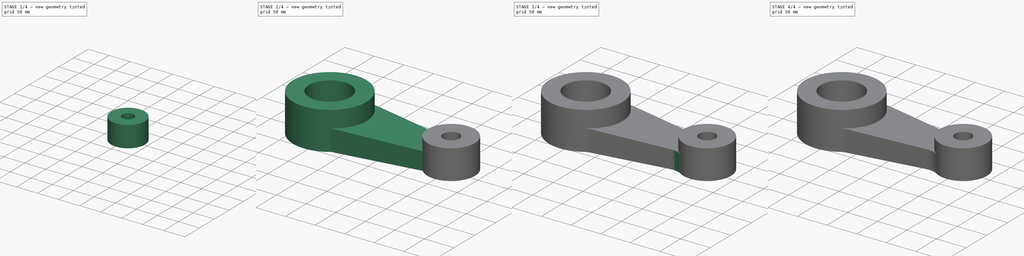
[diagram: build sequence overview — one tinted view per stage of 4, left to right]
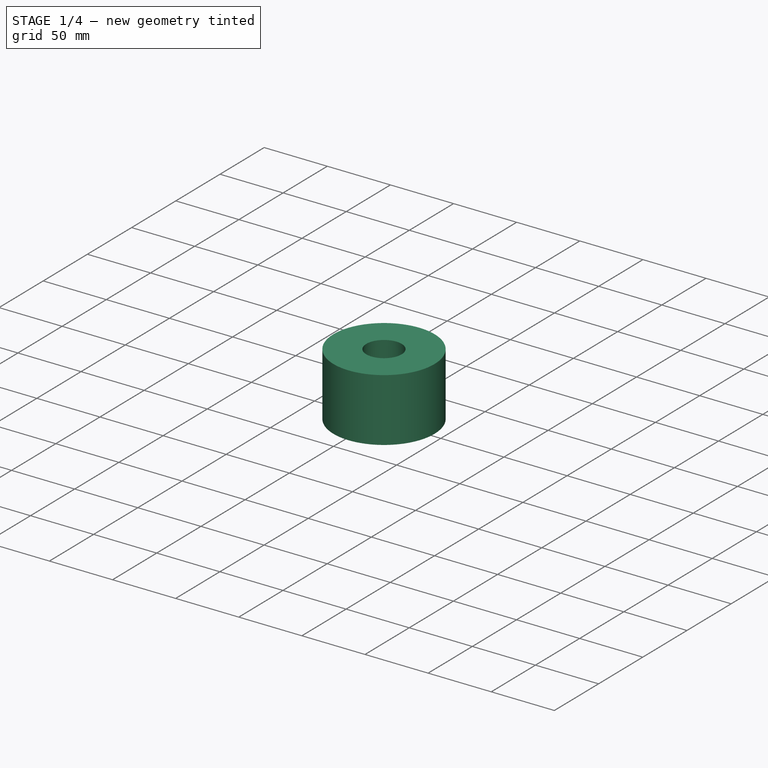
[diagram: stage 1 of 4 — iso view after this stage's code; geometry added in this stage tinted green]
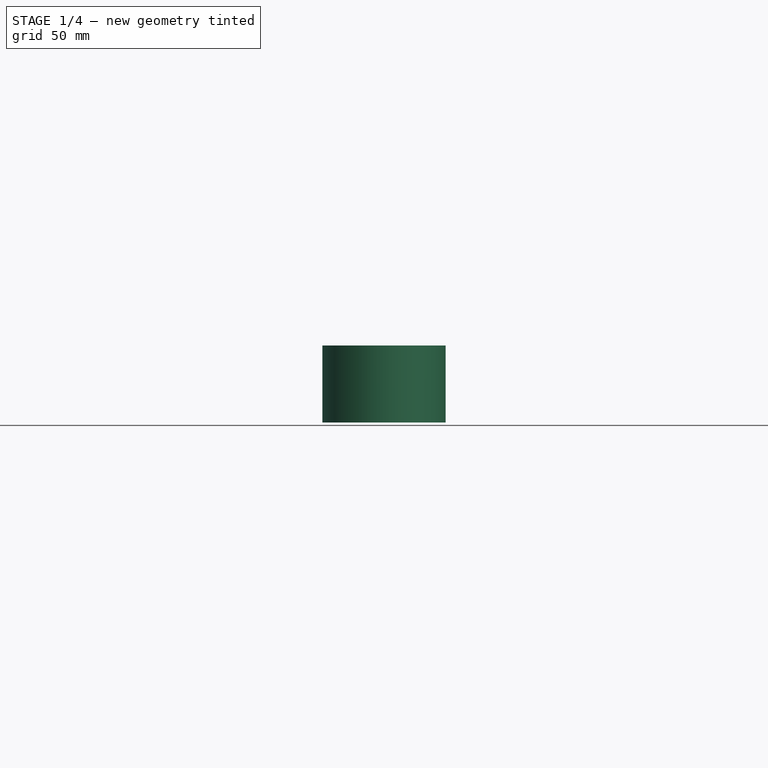
[diagram: stage 1 of 4 — front view after this stage's code; geometry added in this stage tinted green]
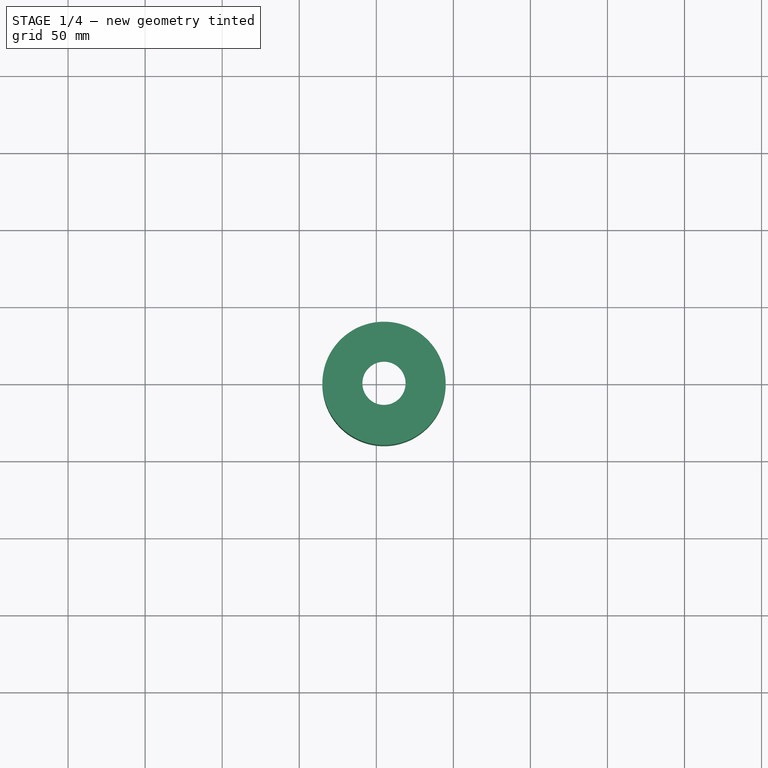
[diagram: stage 1 of 4 — top view after this stage's code; geometry added in this stage tinted green]
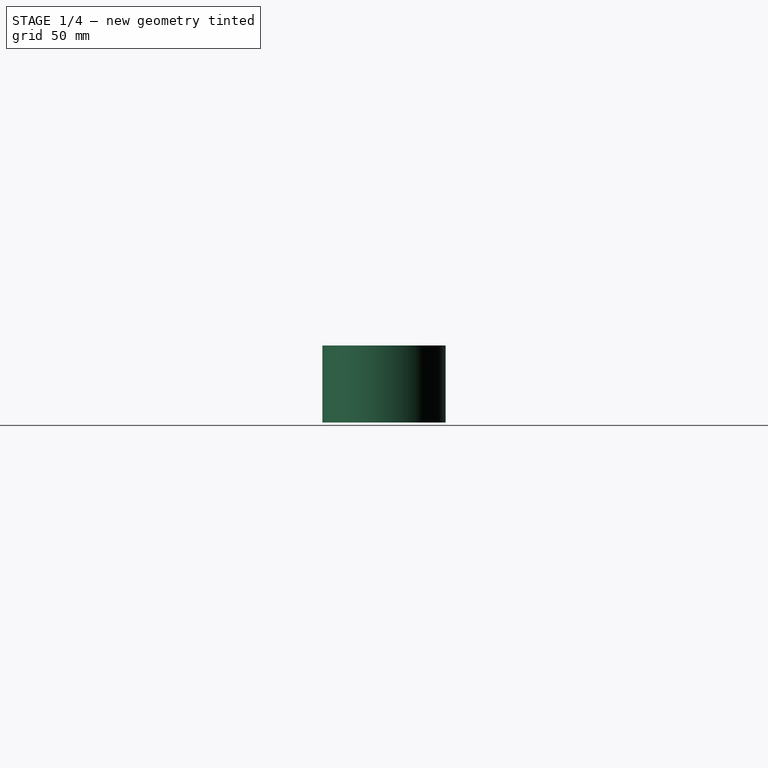
[diagram: stage 1 of 4 — right view after this stage's code; geometry added in this stage tinted green]
FCSTD DOCUMENT  (FreeCAD 0.16R)
Label: Manivela Final
License: All rights reserved
LicenseURL: http://en.wikipedia.org/wiki/All_rights_reserved
objects: Sketcher::SketchObject×6, Part::Feature×4, PartDesign::Fillet×4, PartDesign::Pad×3, PartDesign::Pocket×1, Part::Loft×1, Part::Cut×1, Part::MultiFuse×1
note: 25 computed .brp shape members not serialized (recipe doc carries the construction recipe); baked Part::Feature solids carry a one-line shape summary decoded from their .brp

FEATURE [Sketcher::SketchObject] Sketch001
  sketch-geometry (1):
    g0: Circle CenterX=205 CenterY=0 CenterZ=0 NormalX=0 NormalY=0 NormalZ=1 Radius=40
  constraints (3):
    c: PointOnObject(g0,g-1)
    c: Radius(g0) = 40
    c: DistanceX(g-1,g0) = 205
FEATURE [PartDesign::Pad] Pad001  label="Aro Pequeño"
  Length = 50
  Length2 = 100
  Sketch = -> Sketch001
  Type = 0
FEATURE [Sketcher::SketchObject] Sketch006
  ExternalGeometry = -> [Pad001]
  Placement = pos=(0,0,50) rot=(0,0,1;0rad)
  Support = -> Pad001 [Face3]
  sketch-geometry (1):
    g0: Circle CenterX=205 CenterY=0 CenterZ=0 NormalX=0 NormalY=0 NormalZ=1 Radius=14
  constraints (2):
    c: Coincident(g0,g-3)
    c: Radius(g0) = 14
FEATURE [Sketcher::SketchObject] Sketch007
  ExternalGeometry = -> [Pad001]
  Placement = pos=(0,0,0) rot=(1,0,0;3.14159rad)
  Support = -> Pad001 [Face2]
  sketch-geometry (1):
    g0: Circle CenterX=205 CenterY=0 CenterZ=0 NormalX=0 NormalY=0 NormalZ=1 Radius=17.5
  constraints (2):
    c: Coincident(g0,g-3)
    c: Radius(g0) = 17.5
FEATURE [Part::Loft] Loft
  Closed = false
  Ruled = false
  Sections = -> [Sketch006,Sketch007]
  Solid = false
FEATURE [Part::Feature] Face
  shape: bbox 44.1 x 38.06 x 2e-07 mm, 1 faces, 0 solids (baked)
FEATURE [Part::Feature] Face001
  shape: bbox 52.95 x 43.75 x 2e-07 mm, 1 faces, 0 solids (baked)
FEATURE [Part::Feature] Shell
  shape: bbox 52.95 x 43.75 x 50 mm, 3 faces, 0 solids (baked)
FEATURE [Part::Feature] Solid
  shape: bbox 35 x 35 x 50 mm, 1 faces (baked)
FEATURE [Part::Cut] Cut
  Base = -> Pad001
  Tool = -> Solid
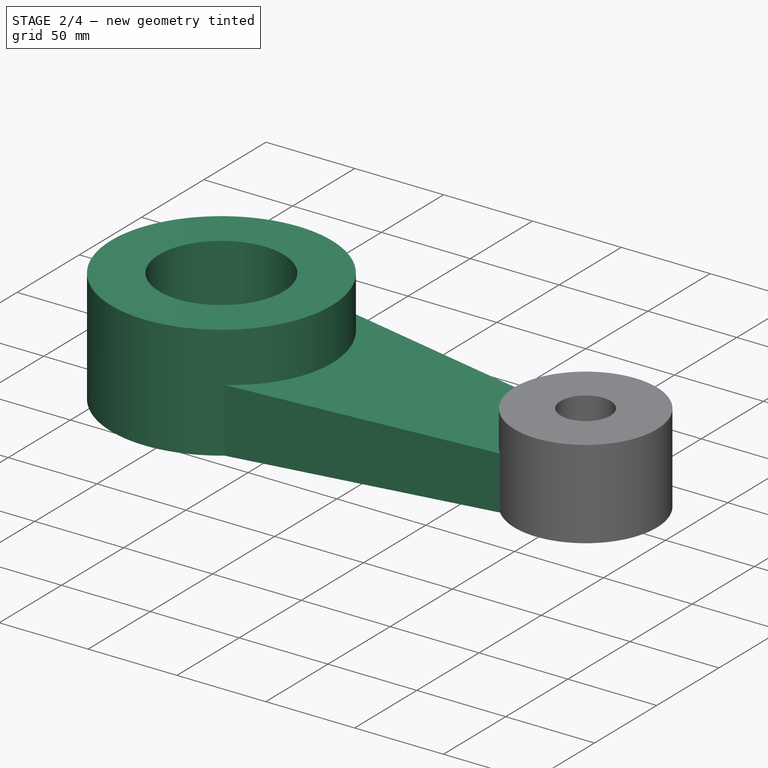
[diagram: stage 2 of 4 — iso view after this stage's code; geometry added in this stage tinted green]
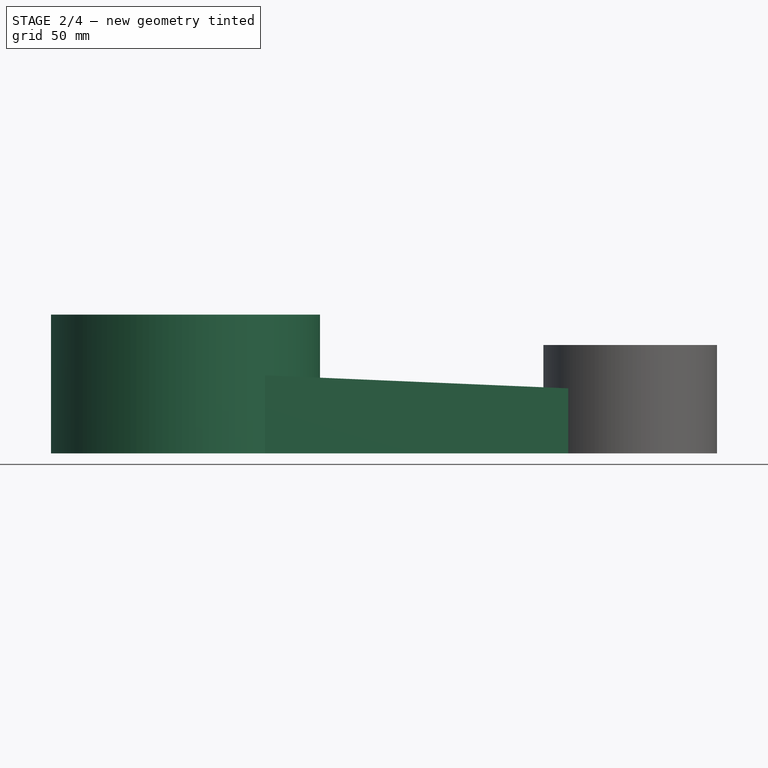
[diagram: stage 2 of 4 — front view after this stage's code; geometry added in this stage tinted green]
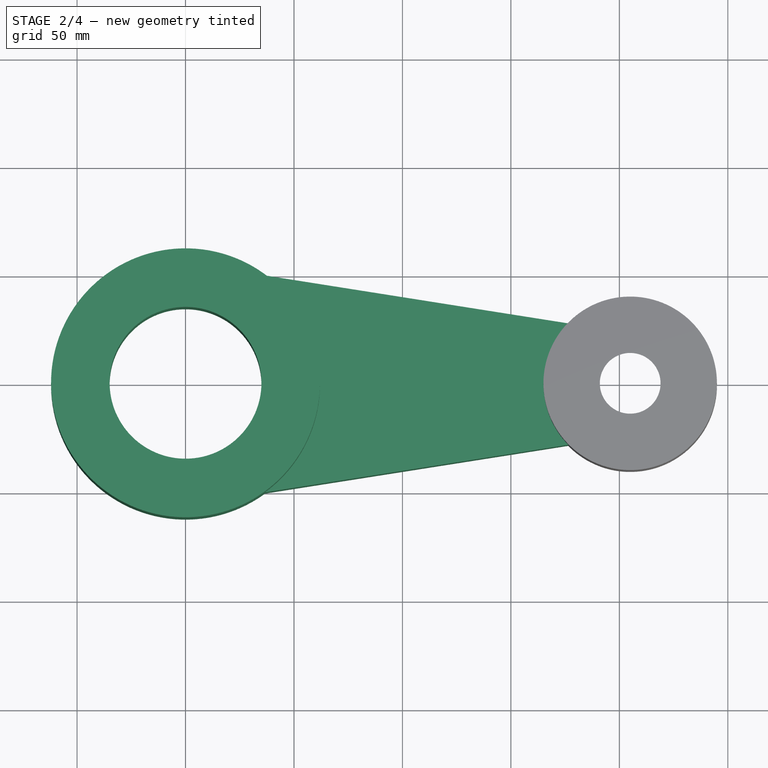
[diagram: stage 2 of 4 — top view after this stage's code; geometry added in this stage tinted green]
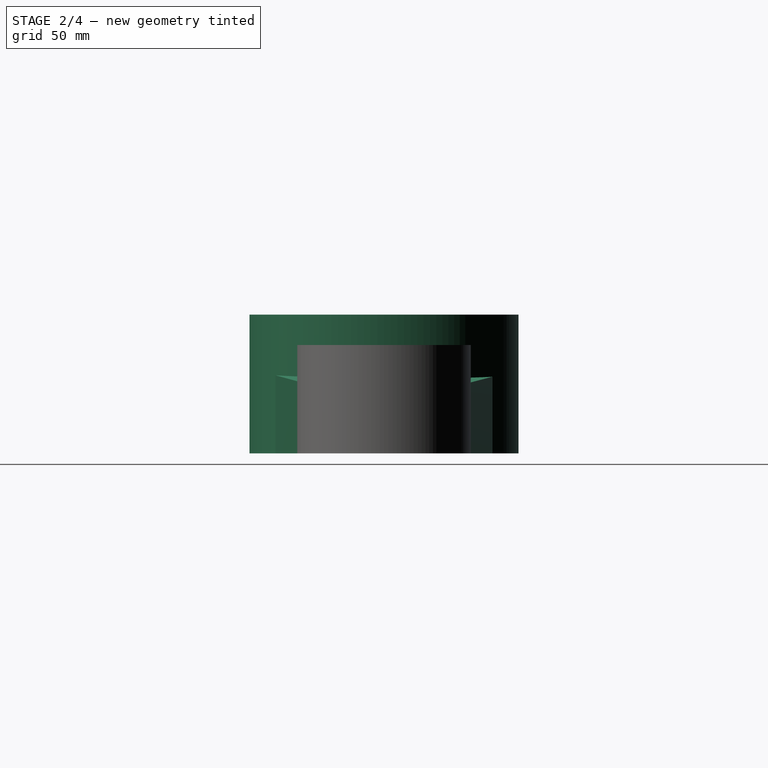
[diagram: stage 2 of 4 — right view after this stage's code; geometry added in this stage tinted green]
FEATURE [Sketcher::SketchObject] Sketch
  sketch-geometry (2):
    g0: Circle CenterX=0 CenterY=0 CenterZ=0 NormalX=0 NormalY=0 NormalZ=1 Radius=35
    g1: Circle CenterX=0 CenterY=0 CenterZ=0 NormalX=0 NormalY=0 NormalZ=1 Radius=62
  constraints (5):
    c: PointOnObject(g0,g-1)
    c: Coincident(g1,g0)
    c: Radius(g0) = 35
    c: Radius(g1) = 62
    c: Coincident(g0,g-1)
FEATURE [PartDesign::Pad] Pad  label="Aro Grande"
  Length = 64
  Length2 = 100
  Sketch = -> Sketch
  Type = 0
FEATURE [Sketcher::SketchObject] Sketch004
  sketch-geometry (4):
    g0: ArcOfCircle CenterX=0 CenterY=0 CenterZ=0 NormalX=0 NormalY=0 NormalZ=1 Radius=62 StartAngle=5.34506 EndAngle=7.22131
    g1: ArcOfCircle CenterX=205 CenterY=0 CenterZ=0 NormalX=0 NormalY=0 NormalZ=1 Radius=40 StartAngle=2.3662 EndAngle=3.91699
    g2: LineSegment StartX=36.6606 StartY=50 StartZ=0 EndX=176.434 EndY=28 EndZ=0
    g3: LineSegment StartX=36.6606 StartY=-50 StartZ=0 EndX=176.434 EndY=-28 EndZ=0
  constraints (13):
    c: Coincident(g0,g-1)
    c: Radius(g0) = 62
    c: DistanceX(g-1,g1) = 205
    c: PointOnObject(g1,g-1)
    c: Radius(g1) = 40
    c: Symmetric(g0,g0,g-1)
    c: Symmetric(g1,g1,g-1)
    c: DistanceY(g0,g0) = 100
    c: DistanceY(g1,g1) = 56
    c: Coincident(g2,g0)
    c: Coincident(g2,g1)
    c: Coincident(g3,g0)
    c: Coincident(g3,g1)
FEATURE [PartDesign::Pad] Pad002
  Length = 36
  Length2 = 100
  Sketch = -> Sketch004
  Type = 0
FEATURE [Sketcher::SketchObject] Sketch005
  ExternalGeometry = -> [Pad002]
  Placement = pos=(8.56588,-54.422,0) rot=(0.993938,0.077743,0.077743;1.57688rad)
  Support = -> Pad002 [Face4]
  sketch-geometry (4):
    g0: LineSegment [constr] StartX=169.935 StartY=0 StartZ=0 EndX=169.935 EndY=30 EndZ=0
    g1: LineSegment StartX=28.4406 StartY=36 StartZ=0 EndX=247.895 EndY=26.6941 EndZ=0
    g2: LineSegment StartX=28.4406 StartY=36 StartZ=0 EndX=247.895 EndY=36 EndZ=0
    g3: LineSegment StartX=247.895 StartY=36 StartZ=0 EndX=247.895 EndY=26.6941 EndZ=0
  constraints (10):
    c: Vertical(g0)
    c: DistanceY(g0,g0) = 30
    c: Coincident(g0,g-4)
    c: Coincident(g-3,g1)
    c: PointOnObject(g0,g1)
    c: Coincident(g1,g2)
    c: Horizontal(g2)
    c: Coincident(g2,g3)
    c: Coincident(g3,g1)
    c: Vertical(g3)
FEATURE [PartDesign::Pocket] Pocket
  Length = 5
  Sketch = -> Sketch005
  Type = 1
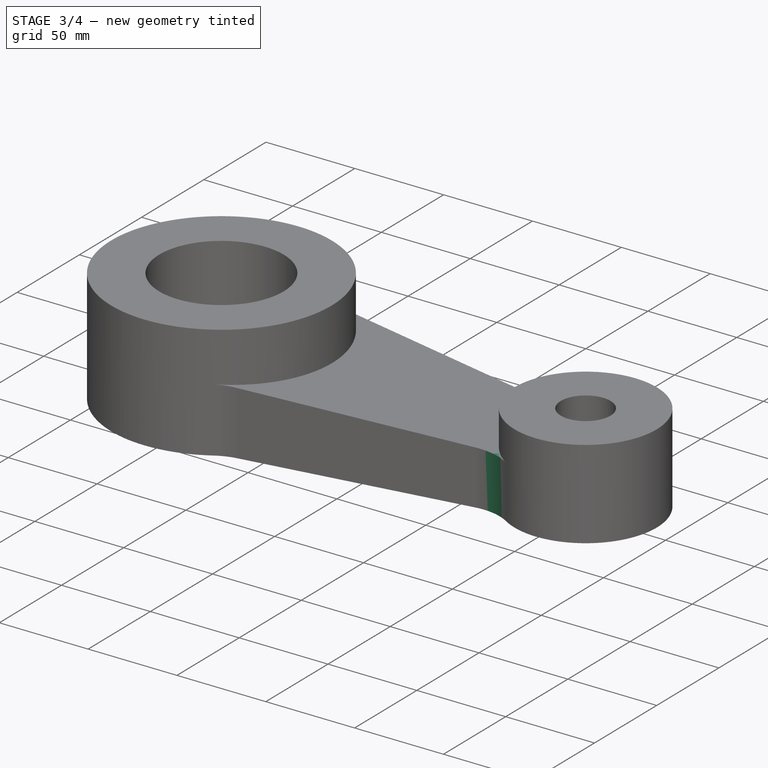
[diagram: stage 3 of 4 — iso view after this stage's code; geometry added in this stage tinted green]
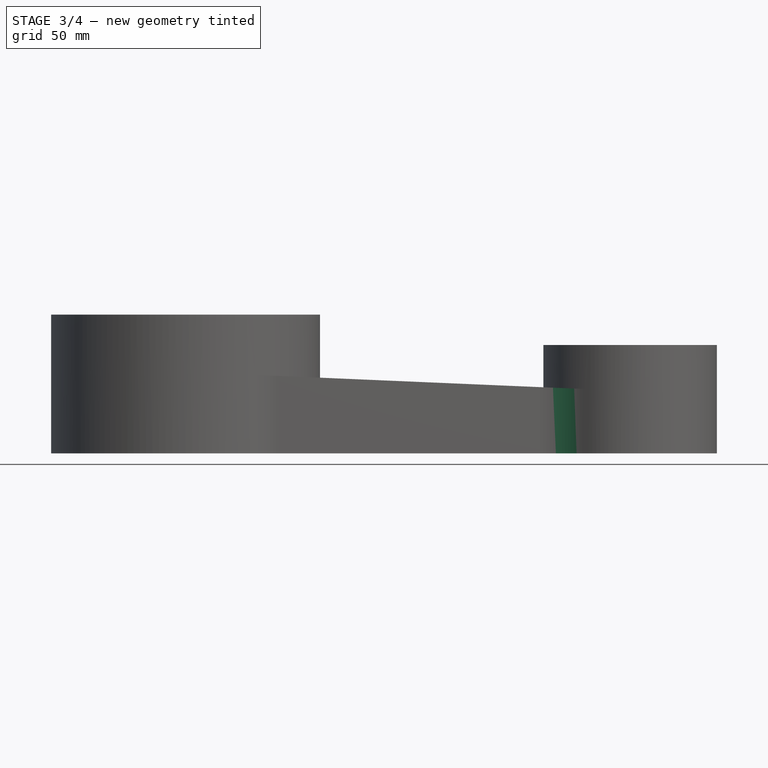
[diagram: stage 3 of 4 — front view after this stage's code; geometry added in this stage tinted green]
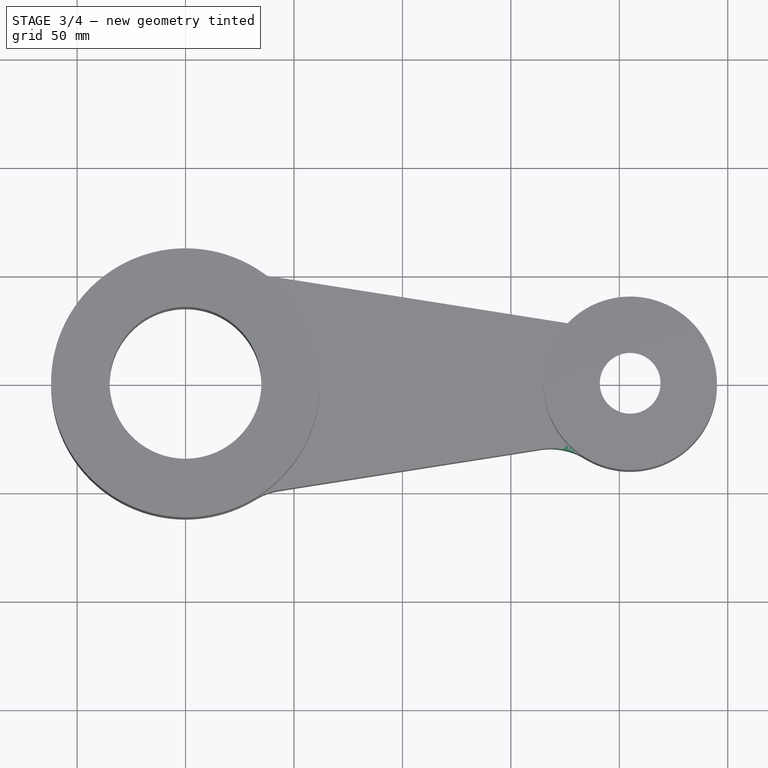
[diagram: stage 3 of 4 — top view after this stage's code; geometry added in this stage tinted green]
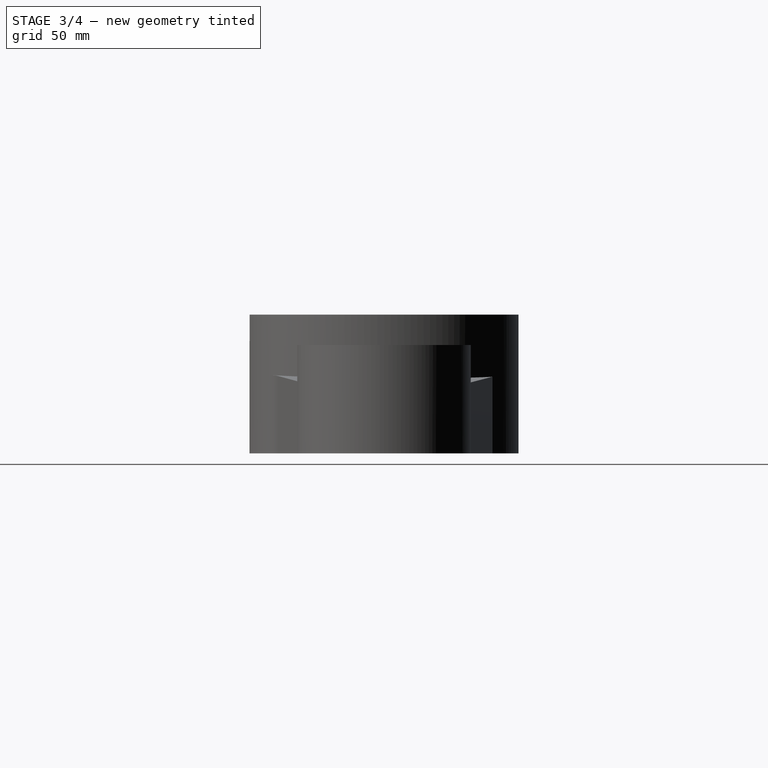
[diagram: stage 3 of 4 — right view after this stage's code; geometry added in this stage tinted green]
FEATURE [Part::MultiFuse] Fusion
  Shapes = -> [Cut,Pad,Pocket]
FEATURE [PartDesign::Fillet] Fillet
  Base = -> Fusion [Edge18]
  Radius = 30
FEATURE [PartDesign::Fillet] Fillet001
  Base = -> Fillet [Edge10]
  Radius = 30
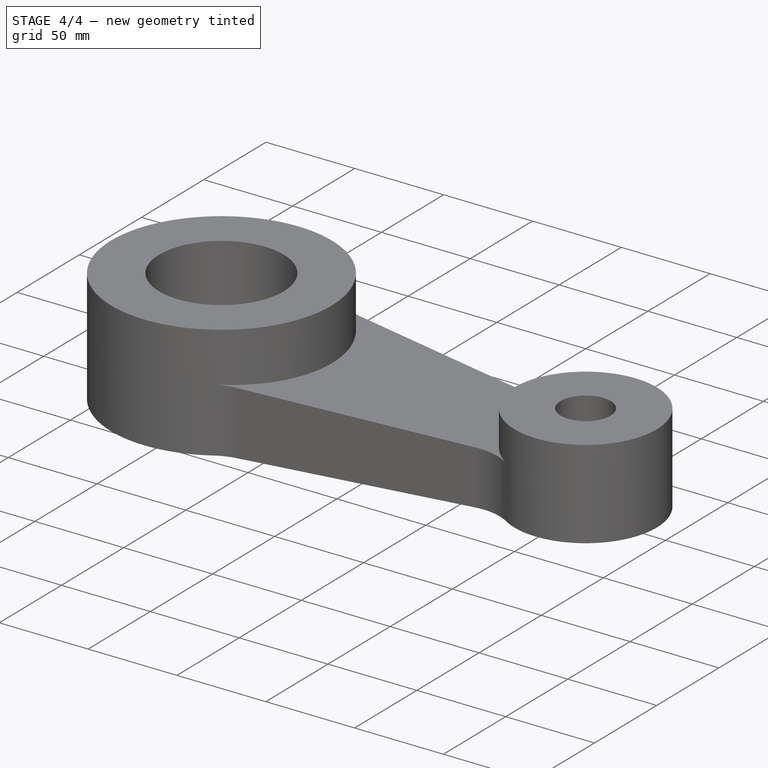
[diagram: stage 4 of 4 — iso view after this stage's code; geometry added in this stage tinted green]
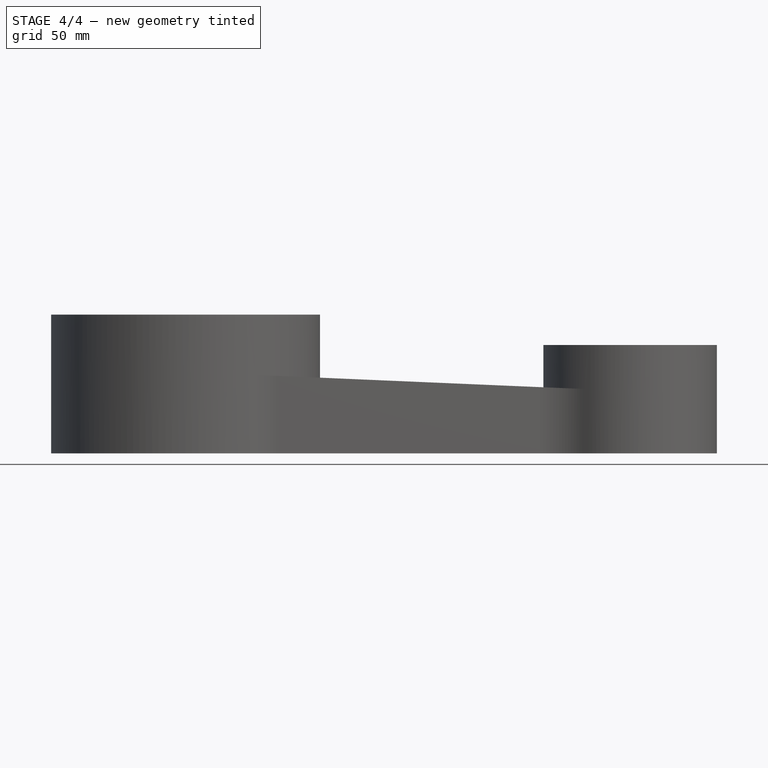
[diagram: stage 4 of 4 — front view after this stage's code; geometry added in this stage tinted green]
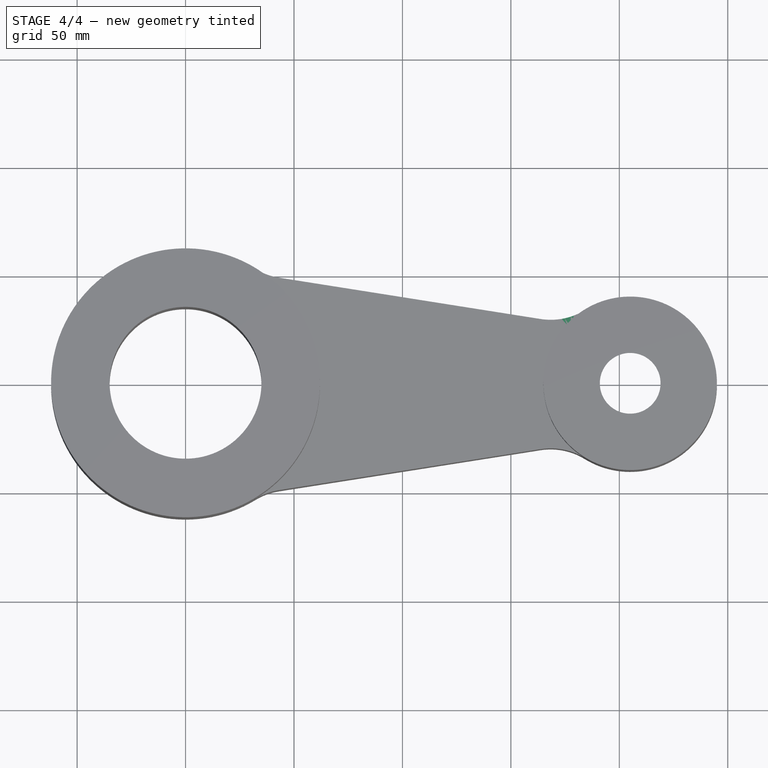
[diagram: stage 4 of 4 — top view after this stage's code; geometry added in this stage tinted green]
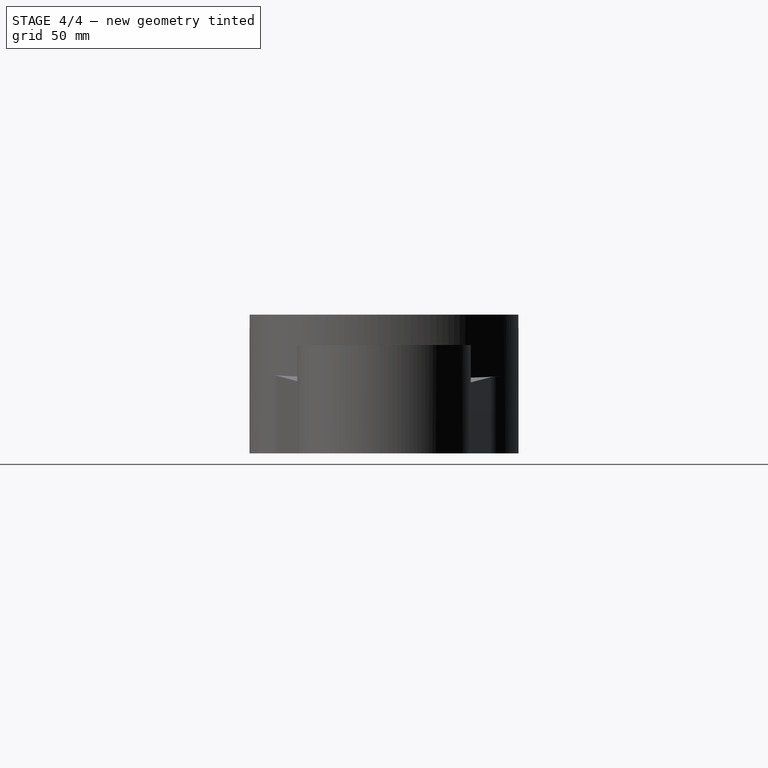
[diagram: stage 4 of 4 — right view after this stage's code; geometry added in this stage tinted green]
FEATURE [PartDesign::Fillet] Fillet002
  Base = -> Fillet001 [Edge20]
  Radius = 30
FEATURE [PartDesign::Fillet] Fillet003
  Base = -> Fillet002 [Edge14]
  Radius = 30
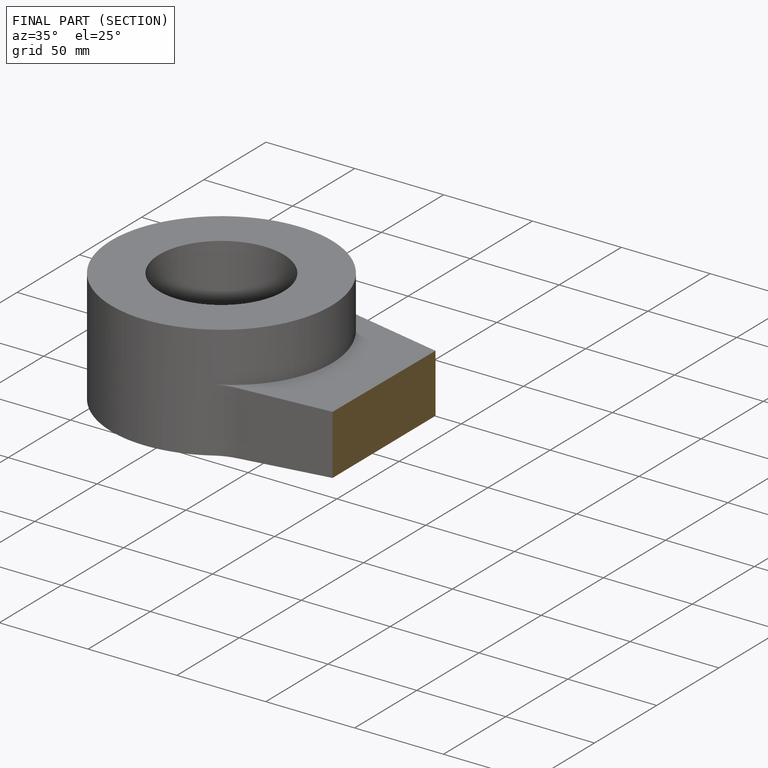
[diagram: finished part — half-section view (interior)]
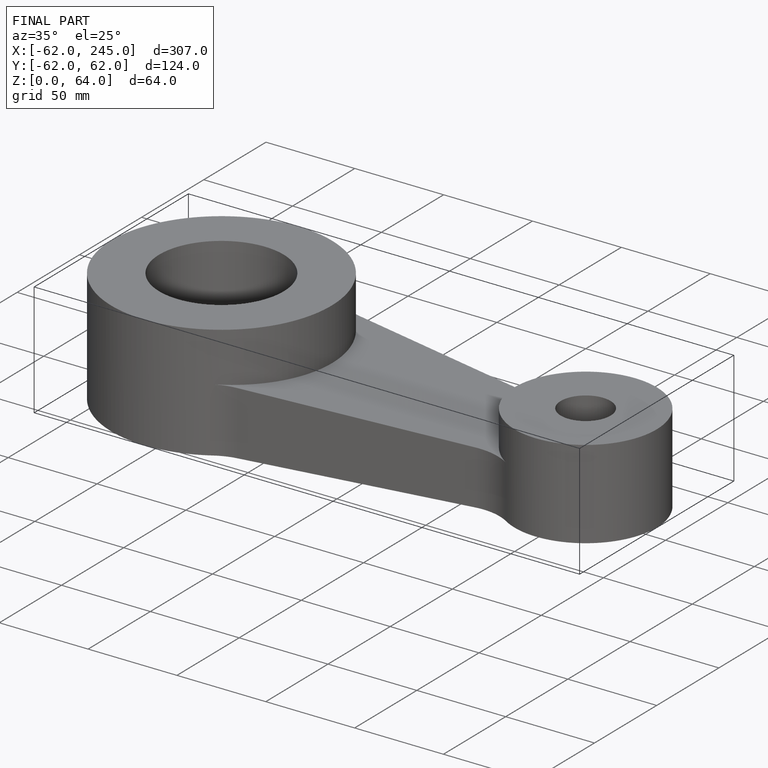
[diagram: finished part — iso view with bounding-box wireframe]
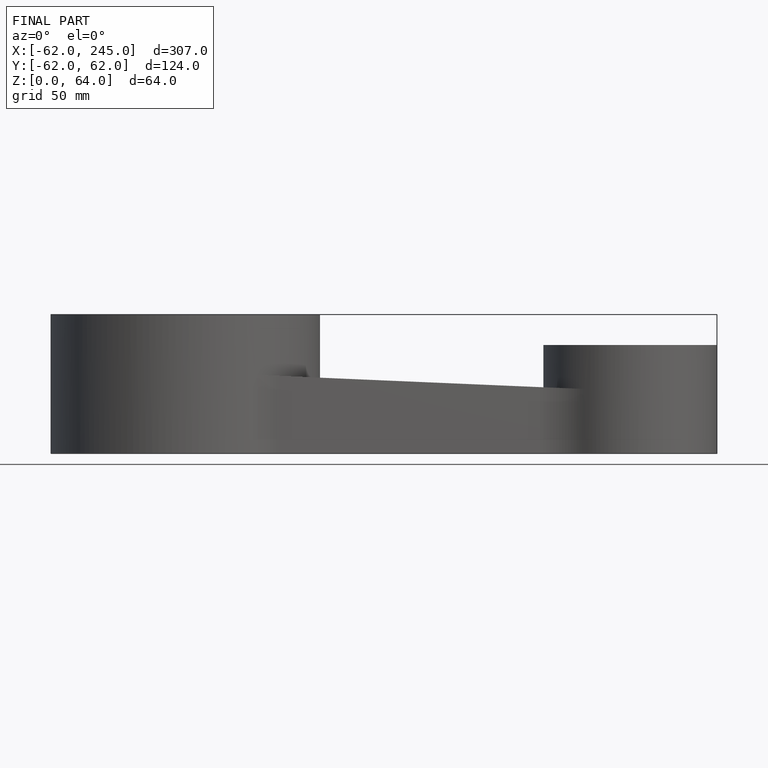
[diagram: finished part — front view with bounding-box wireframe]
